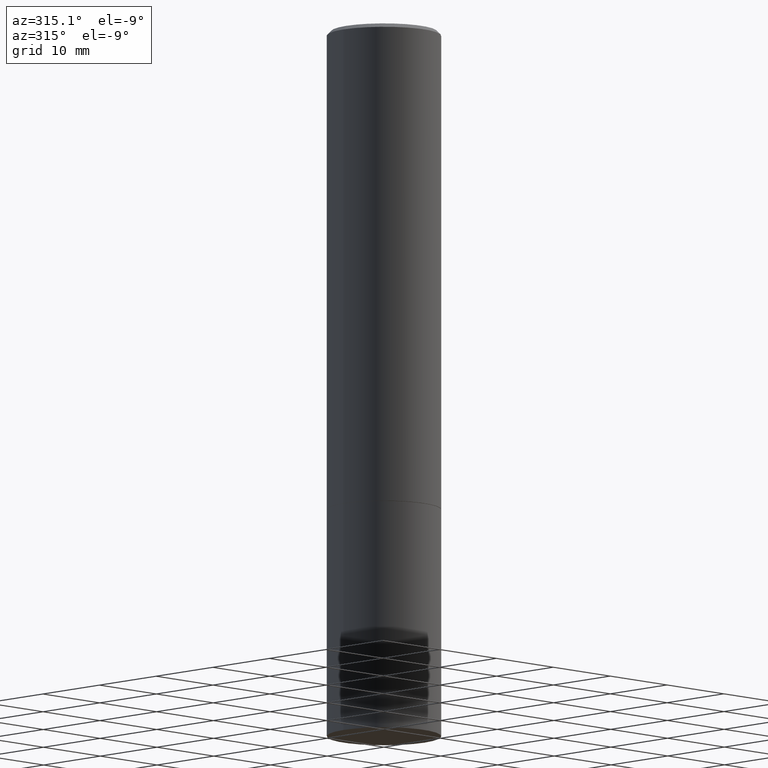
[diagram: clean part render]
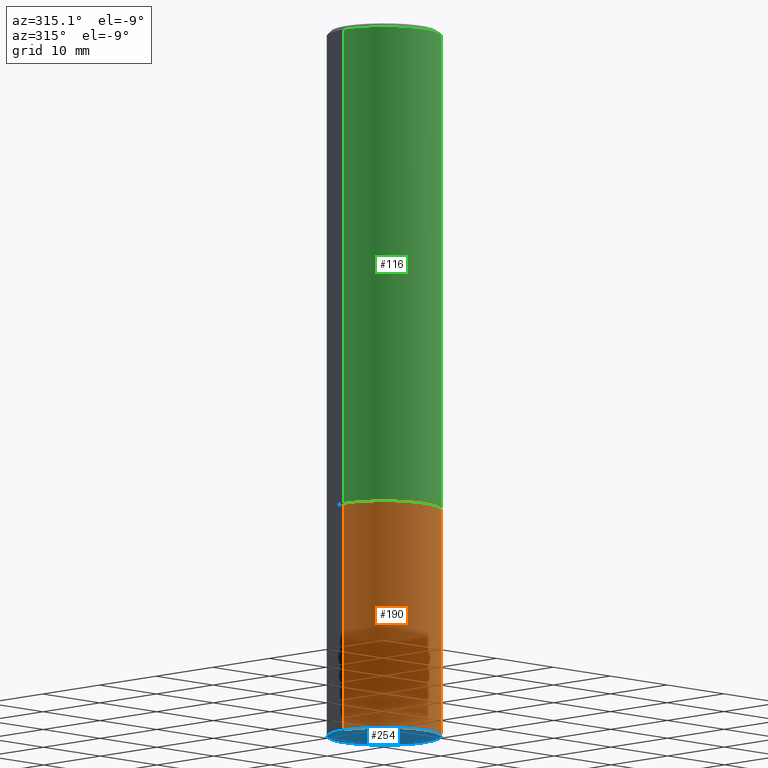
[diagram: same view with three faces highlighted in distinct colors, each labeled with its STEP entity id]
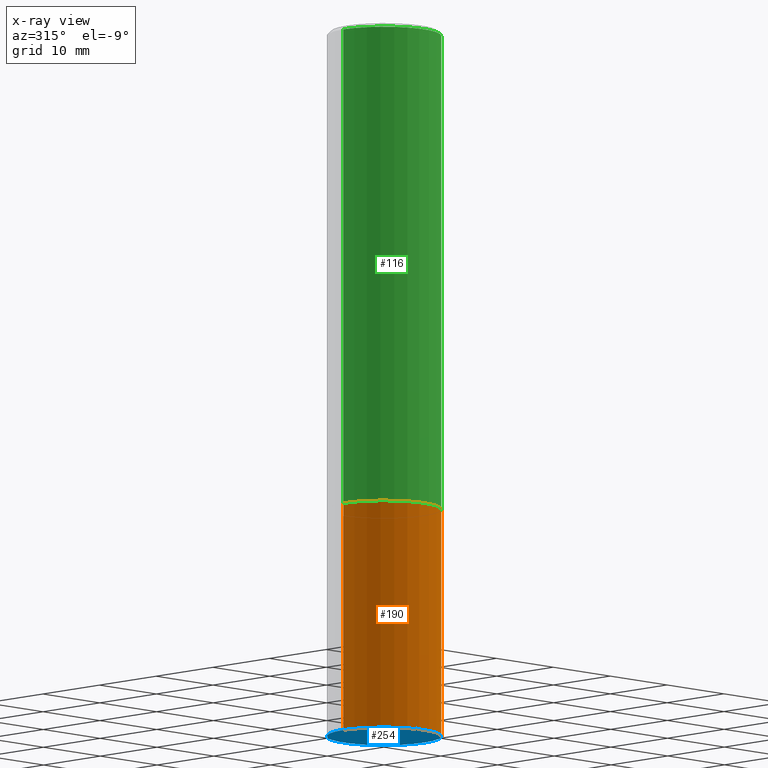
[diagram: x-ray of the same camera — body ghosted, the three highlighted faces saturated]
A machine part, auxiliary view with three faces highlighted in distinct colors.
The next image is the same camera in x-ray (body ghosted, the three faces saturated) — at least one of them is partly hidden behind the body in this view.
Their STEP definitions:

[orange] entity #190 — the highlighted cylindrical surface (partial cylindrical patch) has radius 7.1437 mm, axis along (-0, 0, 1).
#3 = CARTESIAN_POINT ( 'NONE',  ( 0.2812500000000000000, -1.963958253099262512E-15, 1.371424718192607012E-29 ) ) ;
#15 = DIRECTION ( 'NONE',  ( -2.445468806185136877E-29, 3.491481338843145188E-15, 1.000000000000000000 ) ) ;
#26 = ORIENTED_EDGE ( 'NONE', *, *, #293, .F. ) ;
#41 = CYLINDRICAL_SURFACE ( 'NONE', #352, 0.2812500000000000000 ) ;
#52 = VECTOR ( 'NONE', #196, 39.37007874015748143 ) ;
#76 = EDGE_CURVE ( 'NONE', #109, #189, #139, .T. ) ;
#89 = CARTESIAN_POINT ( 'NONE',  ( -0.2812500000000000000, -8.257824988526456379E-15, -3.500000000000000000 ) ) ;
#109 = VERTEX_POINT ( 'NONE', #89 ) ;
#121 = LINE ( 'NONE', #208, #328 ) ;
#139 = CIRCLE ( 'NONE', #181, 0.2812500000000000000 ) ;
#149 = CARTESIAN_POINT ( 'NONE',  ( 5.807988414689698296E-29, -8.292268179752468540E-15, -2.374999999999999556 ) ) ;
#151 = CARTESIAN_POINT ( 'NONE',  ( 0.000000000000000000, 0.000000000000000000, 0.000000000000000000 ) ) ;
#156 = DIRECTION ( 'NONE',  ( 1.000000000000000000, -6.982962677686269866E-15, 0.000000000000000000 ) ) ;
#160 = EDGE_CURVE ( 'NONE', #189, #246, #342, .T. ) ;
#162 = EDGE_LOOP ( 'NONE', ( #26, #300, #243, #223 ) ) ;
#164 = CARTESIAN_POINT ( 'NONE',  ( -0.2812500000000000000, -8.257824988526456379E-15, -2.374999999999999556 ) ) ;
#181 = AXIS2_PLACEMENT_3D ( 'NONE', #252, #343, #311 ) ;
#189 = VERTEX_POINT ( 'NONE', #351 ) ;
#190 = ADVANCED_FACE ( 'NONE', ( #350 ), #41, .T. ) ;
#196 = DIRECTION ( 'NONE',  ( -2.445468806185136877E-29, 3.491481338843145188E-15, 1.000000000000000000 ) ) ;
#208 = CARTESIAN_POINT ( 'NONE',  ( -0.2812500000000000000, 1.998401444325281773E-15, -1.383450494134192269E-29 ) ) ;
#223 = ORIENTED_EDGE ( 'NONE', *, *, #296, .F. ) ;
#232 = CARTESIAN_POINT ( 'NONE',  ( 0.2812500000000000000, -1.025622643285173184E-14, -2.374999999999999556 ) ) ;
#237 = AXIS2_PLACEMENT_3D ( 'NONE', #149, #258, #156 ) ;
#243 = ORIENTED_EDGE ( 'NONE', *, *, #160, .T. ) ;
#246 = VERTEX_POINT ( 'NONE', #232 ) ;
#252 = CARTESIAN_POINT ( 'NONE',  ( 8.559140821647976968E-29, -1.222018468595100934E-14, -3.500000000000000000 ) ) ;
#258 = DIRECTION ( 'NONE',  ( -2.445468806185136597E-29, 3.491481338843145583E-15, 1.000000000000000000 ) ) ;
#259 = CIRCLE ( 'NONE', #237, 0.2812500000000000000 ) ;
#293 = EDGE_CURVE ( 'NONE', #109, #363, #121, .T. ) ;
#295 = DIRECTION ( 'NONE',  ( 1.000000000000000000, -6.982962677686266711E-15, 4.876176775795935793E-29 ) ) ;
#296 = EDGE_CURVE ( 'NONE', #363, #246, #259, .T. ) ;
#300 = ORIENTED_EDGE ( 'NONE', *, *, #76, .T. ) ;
#311 = DIRECTION ( 'NONE',  ( 1.000000000000000000, -6.982962677686269866E-15, 0.000000000000000000 ) ) ;
#328 = VECTOR ( 'NONE', #15, 39.37007874015748143 ) ;
#342 = LINE ( 'NONE', #3, #52 ) ;
#343 = DIRECTION ( 'NONE',  ( -2.445468806185136597E-29, 3.491481338843145583E-15, 1.000000000000000000 ) ) ;
#349 = DIRECTION ( 'NONE',  ( -2.445468806185136597E-29, 3.491481338843145583E-15, 1.000000000000000000 ) ) ;
#350 = FACE_OUTER_BOUND ( 'NONE', #162, .T. ) ;
#351 = CARTESIAN_POINT ( 'NONE',  ( 0.2812500000000000000, -1.418414293905027264E-14, -3.500000000000000000 ) ) ;
#352 = AXIS2_PLACEMENT_3D ( 'NONE', #151, #349, #295 ) ;
#363 = VERTEX_POINT ( 'NONE', #164 ) ;

[blue] entity #254 — the highlighted planar face has unit normal (0, -0, -1).
#2 = DIRECTION ( 'NONE',  ( 1.000000000000000000, -6.982962677686269866E-15, 0.000000000000000000 ) ) ;
#12 = DIRECTION ( 'NONE',  ( -1.000000000000000000, 6.982962677686265922E-15, -4.876176775795935793E-29 ) ) ;
#22 = CIRCLE ( 'NONE', #67, 0.2812500000000000000 ) ;
#39 = DIRECTION ( 'NONE',  ( 2.438088387897960049E-29, -3.491481338843145188E-15, -1.000000000000000000 ) ) ;
#67 = AXIS2_PLACEMENT_3D ( 'NONE', #142, #247, #2 ) ;
#76 = EDGE_CURVE ( 'NONE', #109, #189, #139, .T. ) ;
#80 = ORIENTED_EDGE ( 'NONE', *, *, #144, .F. ) ;
#89 = CARTESIAN_POINT ( 'NONE',  ( -0.2812500000000000000, -8.257824988526456379E-15, -3.500000000000000000 ) ) ;
#109 = VERTEX_POINT ( 'NONE', #89 ) ;
#136 = ORIENTED_EDGE ( 'NONE', *, *, #76, .F. ) ;
#139 = CIRCLE ( 'NONE', #181, 0.2812500000000000000 ) ;
#142 = CARTESIAN_POINT ( 'NONE',  ( 8.559140821647976968E-29, -1.222018468595100934E-14, -3.500000000000000000 ) ) ;
#144 = EDGE_CURVE ( 'NONE', #189, #109, #22, .T. ) ;
#165 = EDGE_LOOP ( 'NONE', ( #80, #136 ) ) ;
#174 = FACE_OUTER_BOUND ( 'NONE', #165, .T. ) ;
#181 = AXIS2_PLACEMENT_3D ( 'NONE', #252, #343, #311 ) ;
#189 = VERTEX_POINT ( 'NONE', #351 ) ;
#228 = PLANE ( 'NONE',  #299 ) ;
#247 = DIRECTION ( 'NONE',  ( -2.445468806185136597E-29, 3.491481338843145583E-15, 1.000000000000000000 ) ) ;
#252 = CARTESIAN_POINT ( 'NONE',  ( 8.559140821647976968E-29, -1.222018468595100934E-14, -3.500000000000000000 ) ) ;
#254 = ADVANCED_FACE ( 'NONE', ( #174 ), #228, .T. ) ;
#263 = CARTESIAN_POINT ( 'NONE',  ( 1.963958253099348104E-15, 0.2812499999999877875, -3.500000000000000888 ) ) ;
#299 = AXIS2_PLACEMENT_3D ( 'NONE', #263, #39, #12 ) ;
#311 = DIRECTION ( 'NONE',  ( 1.000000000000000000, -6.982962677686269866E-15, 0.000000000000000000 ) ) ;
#343 = DIRECTION ( 'NONE',  ( -2.445468806185136597E-29, 3.491481338843145583E-15, 1.000000000000000000 ) ) ;
#351 = CARTESIAN_POINT ( 'NONE',  ( 0.2812500000000000000, -1.418414293905027264E-14, -3.500000000000000000 ) ) ;

[green] entity #116 — the highlighted cylindrical surface (partial cylindrical patch) has radius 7.1437 mm, axis along (-0, 0, 1).
#7 = CARTESIAN_POINT ( 'NONE',  ( 0.000000000000000000, 0.000000000000000000, 0.000000000000000000 ) ) ;
#24 = ORIENTED_EDGE ( 'NONE', *, *, #348, .T. ) ;
#38 = CARTESIAN_POINT ( 'NONE',  ( 0.2812499999999996114, -1.999344688650103789E-15, -0.02000000000000006981 ) ) ;
#46 = EDGE_CURVE ( 'NONE', #140, #130, #193, .T. ) ;
#60 = EDGE_CURVE ( 'NONE', #75, #130, #85, .T. ) ;
#75 = VERTEX_POINT ( 'NONE', #117 ) ;
#85 = CIRCLE ( 'NONE', #176, 0.2812499999999996114 ) ;
#86 = CIRCLE ( 'NONE', #292, 0.2812500000000000555 ) ;
#87 = DIRECTION ( 'NONE',  ( -2.445468806185136877E-29, 3.491481338843145188E-15, 1.000000000000000000 ) ) ;
#94 = VECTOR ( 'NONE', #87, 39.37007874015748143 ) ;
#106 = EDGE_LOOP ( 'NONE', ( #282, #24, #241, #302 ) ) ;
#116 = ADVANCED_FACE ( 'NONE', ( #347 ), #147, .T. ) ;
#117 = CARTESIAN_POINT ( 'NONE',  ( -0.2812499999999996114, 1.894128626322396848E-15, -0.02000000000000006981 ) ) ;
#130 = VERTEX_POINT ( 'NONE', #38 ) ;
#140 = VERTEX_POINT ( 'NONE', #148 ) ;
#146 = DIRECTION ( 'NONE',  ( -2.445468806185136597E-29, 3.491481338843145583E-15, 1.000000000000000000 ) ) ;
#147 = CYLINDRICAL_SURFACE ( 'NONE', #225, 0.2812499999999998335 ) ;
#148 = CARTESIAN_POINT ( 'NONE',  ( 0.2812500000000000555, -1.025273495151288883E-14, -2.373999999999999222 ) ) ;
#175 = CARTESIAN_POINT ( 'NONE',  ( -0.2812500000000000000, -2.180901718269959487E-15, -2.373999999999999222 ) ) ;
#176 = AXIS2_PLACEMENT_3D ( 'NONE', #198, #146, #218 ) ;
#178 = DIRECTION ( 'NONE',  ( -2.445468806185136877E-29, 3.491481338843145188E-15, 1.000000000000000000 ) ) ;
#179 = DIRECTION ( 'NONE',  ( 1.000000000000000000, -6.982962677686268288E-15, 0.000000000000000000 ) ) ;
#193 = LINE ( 'NONE', #284, #94 ) ;
#198 = CARTESIAN_POINT ( 'NONE',  ( 4.890937612370289799E-31, -6.982962677686315028E-17, -0.02000000000000006981 ) ) ;
#218 = DIRECTION ( 'NONE',  ( 1.000000000000000000, -6.982962677686268288E-15, 0.000000000000000000 ) ) ;
#225 = AXIS2_PLACEMENT_3D ( 'NONE', #7, #319, #344 ) ;
#226 = VERTEX_POINT ( 'NONE', #175 ) ;
#229 = LINE ( 'NONE', #322, #245 ) ;
#241 = ORIENTED_EDGE ( 'NONE', *, *, #46, .T. ) ;
#245 = VECTOR ( 'NONE', #178, 39.37007874015748143 ) ;
#282 = ORIENTED_EDGE ( 'NONE', *, *, #310, .F. ) ;
#284 = CARTESIAN_POINT ( 'NONE',  ( 0.2812499999999998335, -1.963958253099261329E-15, 1.371424718192606171E-29 ) ) ;
#292 = AXIS2_PLACEMENT_3D ( 'NONE', #321, #323, #179 ) ;
#302 = ORIENTED_EDGE ( 'NONE', *, *, #60, .F. ) ;
#310 = EDGE_CURVE ( 'NONE', #226, #75, #229, .T. ) ;
#319 = DIRECTION ( 'NONE',  ( -2.445468806185136597E-29, 3.491481338843145583E-15, 1.000000000000000000 ) ) ;
#321 = CARTESIAN_POINT ( 'NONE',  ( 5.805542945883512693E-29, -8.288776698413625533E-15, -2.373999999999999222 ) ) ;
#322 = CARTESIAN_POINT ( 'NONE',  ( -0.2812499999999998335, 1.998401444325280589E-15, -1.383450494134191428E-29 ) ) ;
#323 = DIRECTION ( 'NONE',  ( -2.445468806185136597E-29, 3.491481338843145583E-15, 1.000000000000000000 ) ) ;
#344 = DIRECTION ( 'NONE',  ( 1.000000000000000000, -6.982962677686266711E-15, 4.876176775795935793E-29 ) ) ;
#347 = FACE_OUTER_BOUND ( 'NONE', #106, .T. ) ;
#348 = EDGE_CURVE ( 'NONE', #226, #140, #86, .T. ) ;